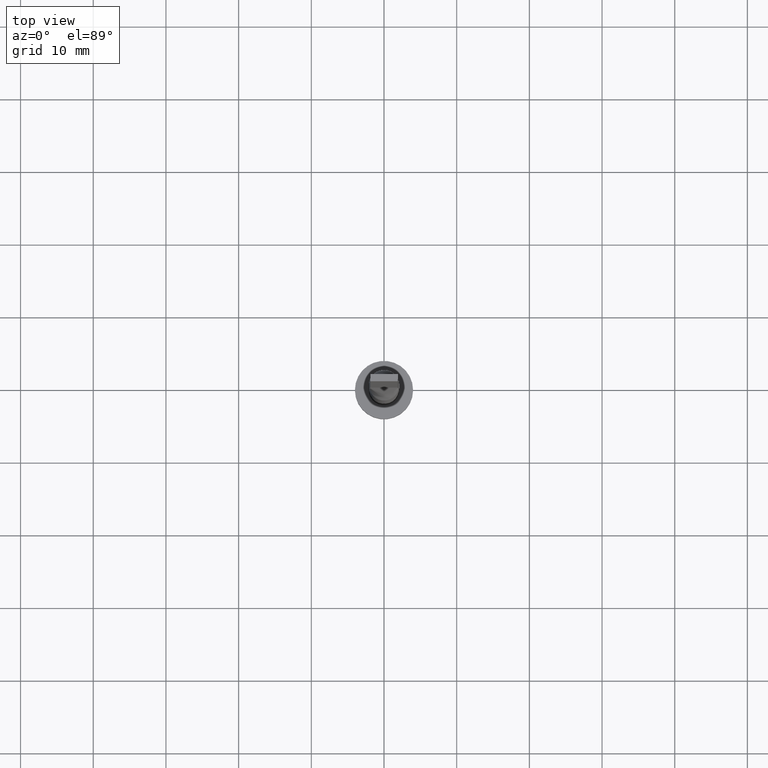
[diagram: clean part render]
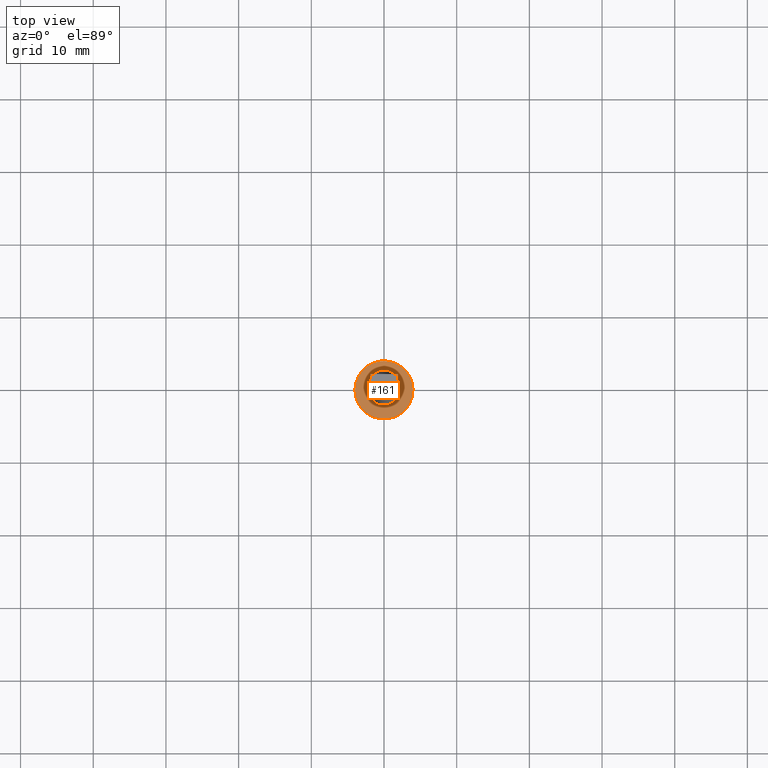
[diagram: same view with one face highlighted and labeled with its STEP entity id]
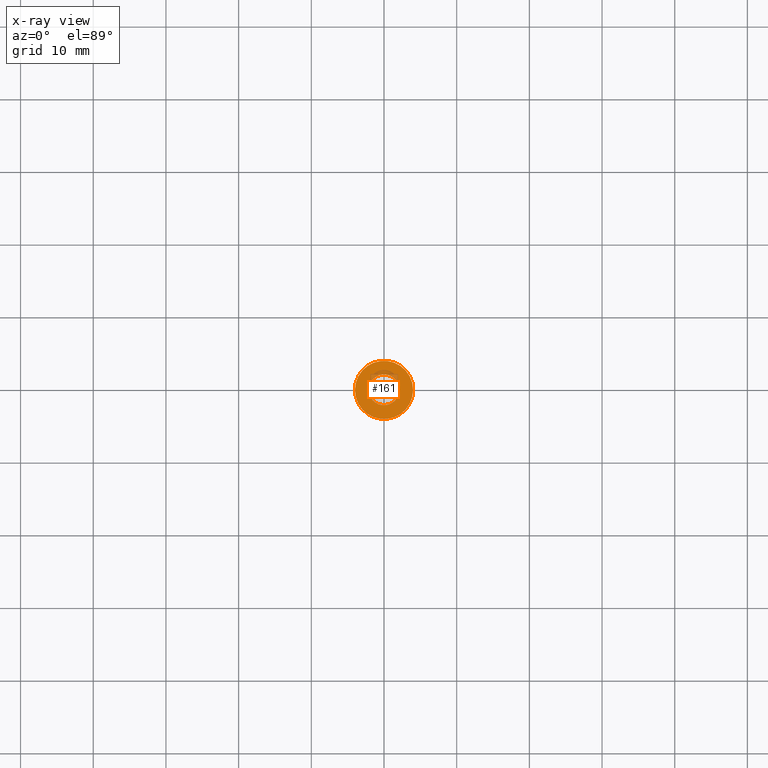
[diagram: x-ray of the same camera — body ghosted, the highlighted face saturated]
A machine part, top view. The second image highlights one B-rep face of the part: STEP entity #161.
The next image is the same camera in x-ray: the body ghosted, the highlighted face saturated — about 8% of this face is hidden behind the body in this view.
In plain terms, the highlighted planar face has unit normal (0, 0, 1).
Its self-contained STEP definition (entity closure, byte-faithful):
#2 = DIRECTION ( 'NONE',  ( 0.000000000000000000, 0.000000000000000000, 1.000000000000000000 ) ) ;
#6 = CARTESIAN_POINT ( 'NONE',  ( 0.000000000000000000, 0.000000000000000000, 3.000000000000000000 ) ) ;
#12 = CARTESIAN_POINT ( 'NONE',  ( 0.000000000000000000, 0.000000000000000000, 3.000000000000000000 ) ) ;
#13 = CIRCLE ( 'NONE', #459, 4.000000000000000000 ) ;
#15 = CARTESIAN_POINT ( 'NONE',  ( 4.000000000000000000, 4.898587196589412829E-16, 3.000000000000000000 ) ) ;
#47 = CIRCLE ( 'NONE', #217, 2.100000000000000089 ) ;
#52 = DIRECTION ( 'NONE',  ( 1.000000000000000000, 0.000000000000000000, 0.000000000000000000 ) ) ;
#80 = ORIENTED_EDGE ( 'NONE', *, *, #383, .T. ) ;
#99 = EDGE_CURVE ( 'NONE', #149, #567, #421, .T. ) ;
#141 = PLANE ( 'NONE',  #232 ) ;
#145 = DIRECTION ( 'NONE',  ( 0.000000000000000000, 0.000000000000000000, 1.000000000000000000 ) ) ;
#146 = CARTESIAN_POINT ( 'NONE',  ( 0.000000000000000000, 0.000000000000000000, 3.000000000000000000 ) ) ;
#149 = VERTEX_POINT ( 'NONE', #276 ) ;
#161 = ADVANCED_FACE ( 'NONE', ( #535, #528 ), #141, .T. ) ;
#164 = AXIS2_PLACEMENT_3D ( 'NONE', #12, #547, #426 ) ;
#217 = AXIS2_PLACEMENT_3D ( 'NONE', #146, #371, #52 ) ;
#232 = AXIS2_PLACEMENT_3D ( 'NONE', #6, #2, #489 ) ;
#245 = CARTESIAN_POINT ( 'NONE',  ( 0.000000000000000000, 0.000000000000000000, 3.000000000000000000 ) ) ;
#259 = AXIS2_PLACEMENT_3D ( 'NONE', #332, #284, #503 ) ;
#274 = CIRCLE ( 'NONE', #164, 4.000000000000000000 ) ;
#276 = CARTESIAN_POINT ( 'NONE',  ( 2.100000000000000089, 2.571758278209441957E-16, 3.000000000000000000 ) ) ;
#284 = DIRECTION ( 'NONE',  ( 0.000000000000000000, 0.000000000000000000, 1.000000000000000000 ) ) ;
#307 = VERTEX_POINT ( 'NONE', #15 ) ;
#324 = DIRECTION ( 'NONE',  ( 1.000000000000000000, 0.000000000000000000, 0.000000000000000000 ) ) ;
#327 = EDGE_CURVE ( 'NONE', #567, #149, #47, .T. ) ;
#332 = CARTESIAN_POINT ( 'NONE',  ( 0.000000000000000000, 0.000000000000000000, 3.000000000000000000 ) ) ;
#349 = ORIENTED_EDGE ( 'NONE', *, *, #327, .F. ) ;
#356 = ORIENTED_EDGE ( 'NONE', *, *, #99, .F. ) ;
#357 = CARTESIAN_POINT ( 'NONE',  ( -2.100000000000000089, 0.000000000000000000, 3.000000000000000000 ) ) ;
#358 = EDGE_LOOP ( 'NONE', ( #519, #80 ) ) ;
#371 = DIRECTION ( 'NONE',  ( 0.000000000000000000, 0.000000000000000000, 1.000000000000000000 ) ) ;
#381 = VERTEX_POINT ( 'NONE', #491 ) ;
#383 = EDGE_CURVE ( 'NONE', #307, #381, #13, .T. ) ;
#421 = CIRCLE ( 'NONE', #259, 2.100000000000000089 ) ;
#426 = DIRECTION ( 'NONE',  ( 1.000000000000000000, 0.000000000000000000, 0.000000000000000000 ) ) ;
#433 = EDGE_LOOP ( 'NONE', ( #349, #356 ) ) ;
#459 = AXIS2_PLACEMENT_3D ( 'NONE', #245, #145, #324 ) ;
#460 = EDGE_CURVE ( 'NONE', #381, #307, #274, .T. ) ;
#489 = DIRECTION ( 'NONE',  ( 1.000000000000000000, 0.000000000000000000, -0.000000000000000000 ) ) ;
#491 = CARTESIAN_POINT ( 'NONE',  ( -4.000000000000000000, 0.000000000000000000, 3.000000000000000000 ) ) ;
#503 = DIRECTION ( 'NONE',  ( 1.000000000000000000, 0.000000000000000000, 0.000000000000000000 ) ) ;
#519 = ORIENTED_EDGE ( 'NONE', *, *, #460, .T. ) ;
#528 = FACE_OUTER_BOUND ( 'NONE', #358, .T. ) ;
#535 = FACE_BOUND ( 'NONE', #433, .T. ) ;
#547 = DIRECTION ( 'NONE',  ( 0.000000000000000000, 0.000000000000000000, 1.000000000000000000 ) ) ;
#567 = VERTEX_POINT ( 'NONE', #357 ) ;